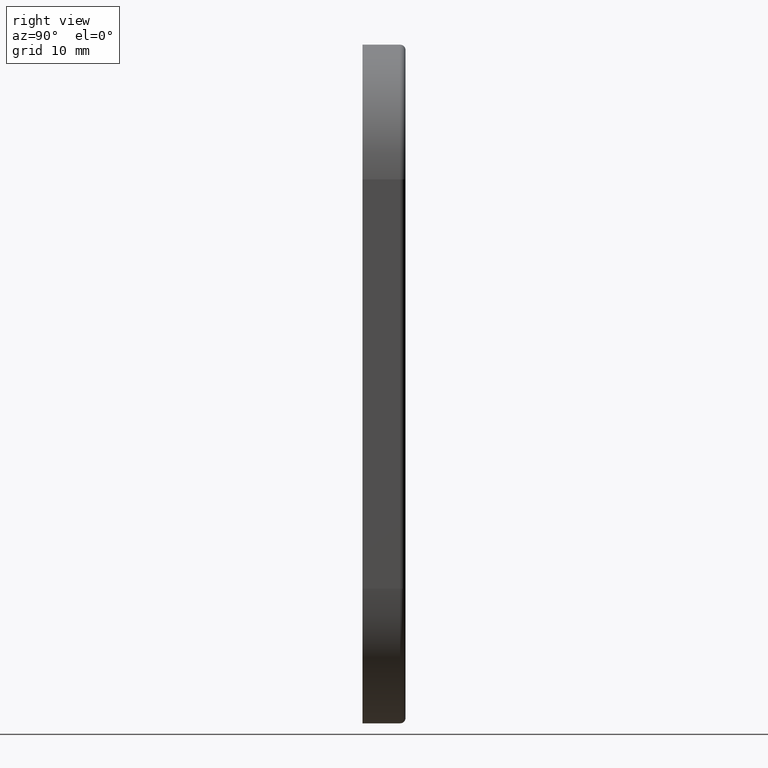
[diagram: clean part render]
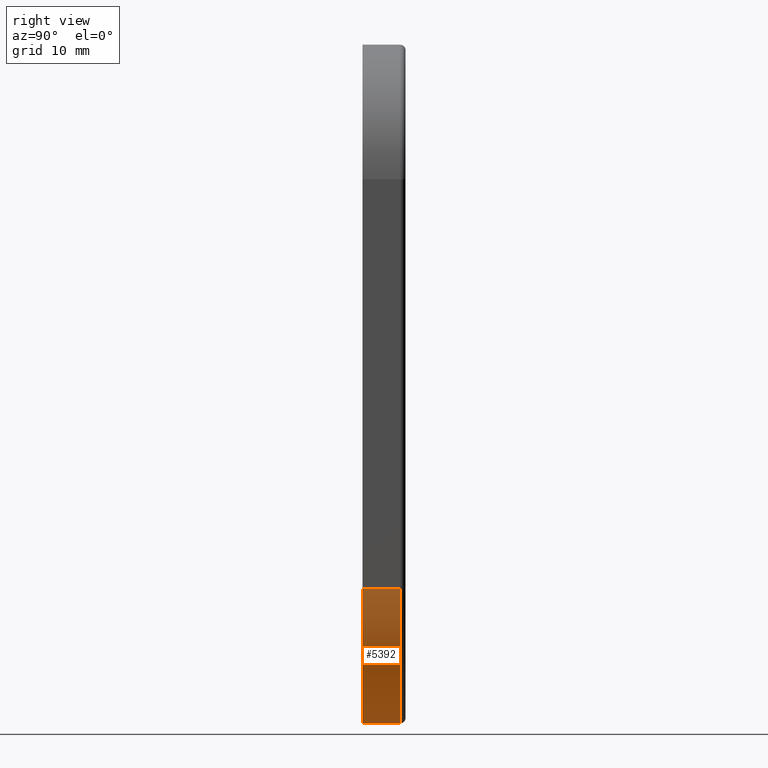
[diagram: same view with one face highlighted and labeled with its STEP entity id]
A machine part, right view. The second image highlights one B-rep face of the part: STEP entity #5392.
In plain terms, the highlighted cylindrical surface (partial cylindrical patch) has radius 12.5 mm, axis along (0, 1, 0).
Its self-contained STEP definition (entity closure, byte-faithful):
#295 = AXIS2_PLACEMENT_3D ( 'NONE', #5250, #1778, #13575 ) ;
#401 = CIRCLE ( 'NONE', #3448, 12.49999999999999645 ) ;
#785 = EDGE_CURVE ( 'NONE', #13454, #14632, #6210, .T. ) ;
#1388 = CARTESIAN_POINT ( 'NONE',  ( 0.000000000000000000, 3.500000000000000000, -19.00000000000000355 ) ) ;
#1435 = DIRECTION ( 'NONE',  ( 0.000000000000000000, 0.000000000000000000, -1.000000000000000000 ) ) ;
#1654 = LINE ( 'NONE', #11294, #2382 ) ;
#1778 = DIRECTION ( 'NONE',  ( 0.000000000000000000, 1.000000000000000000, 0.000000000000000000 ) ) ;
#1871 = FACE_OUTER_BOUND ( 'NONE', #14598, .T. ) ;
#2382 = VECTOR ( 'NONE', #3357, 1000.000000000000000 ) ;
#3357 = DIRECTION ( 'NONE',  ( -0.000000000000000000, 1.000000000000000000, -0.000000000000000000 ) ) ;
#3448 = AXIS2_PLACEMENT_3D ( 'NONE', #1388, #9471, #1435 ) ;
#3506 = ORIENTED_EDGE ( 'NONE', *, *, #5474, .T. ) ;
#3620 = EDGE_CURVE ( 'NONE', #14880, #13454, #7001, .T. ) ;
#3729 = AXIS2_PLACEMENT_3D ( 'NONE', #5101, #14346, #11914 ) ;
#3752 = CARTESIAN_POINT ( 'NONE',  ( 12.50000000000000000, 4.000000000000000000, -19.00000000000000355 ) ) ;
#5101 = CARTESIAN_POINT ( 'NONE',  ( 0.000000000000000000, 0.000000000000000000, -19.00000000000000355 ) ) ;
#5250 = CARTESIAN_POINT ( 'NONE',  ( 0.000000000000000000, 4.000000000000000000, -19.00000000000000355 ) ) ;
#5307 = CARTESIAN_POINT ( 'NONE',  ( 12.50000000000000000, 3.500000000000000000, -19.00000000000000355 ) ) ;
#5392 = ADVANCED_FACE ( 'NONE', ( #1871 ), #11477, .T. ) ;
#5474 = EDGE_CURVE ( 'NONE', #7089, #14632, #401, .T. ) ;
#6210 = LINE ( 'NONE', #3752, #11979 ) ;
#6942 = EDGE_CURVE ( 'NONE', #14880, #7089, #1654, .T. ) ;
#7001 = CIRCLE ( 'NONE', #3729, 12.50000000000000000 ) ;
#7089 = VERTEX_POINT ( 'NONE', #9906 ) ;
#9471 = DIRECTION ( 'NONE',  ( 0.000000000000000000, -1.000000000000000000, 0.000000000000000000 ) ) ;
#9906 = CARTESIAN_POINT ( 'NONE',  ( -0.000000000000000000, 3.500000000000000000, -31.50000000000000000 ) ) ;
#10774 = CARTESIAN_POINT ( 'NONE',  ( 12.50000000000000000, 0.000000000000000000, -19.00000000000000355 ) ) ;
#10847 = ORIENTED_EDGE ( 'NONE', *, *, #3620, .F. ) ;
#11294 = CARTESIAN_POINT ( 'NONE',  ( -0.000000000000000000, 0.000000000000000000, -31.50000000000000000 ) ) ;
#11477 = CYLINDRICAL_SURFACE ( 'NONE', #295, 12.50000000000000000 ) ;
#11914 = DIRECTION ( 'NONE',  ( 0.000000000000000000, 0.000000000000000000, 1.000000000000000000 ) ) ;
#11979 = VECTOR ( 'NONE', #12856, 1000.000000000000000 ) ;
#12088 = ORIENTED_EDGE ( 'NONE', *, *, #785, .F. ) ;
#12856 = DIRECTION ( 'NONE',  ( 0.000000000000000000, 1.000000000000000000, 0.000000000000000000 ) ) ;
#13454 = VERTEX_POINT ( 'NONE', #10774 ) ;
#13575 = DIRECTION ( 'NONE',  ( 0.000000000000000000, 0.000000000000000000, 1.000000000000000000 ) ) ;
#13984 = CARTESIAN_POINT ( 'NONE',  ( 0.000000000000000000, 0.000000000000000000, -31.50000000000000000 ) ) ;
#14346 = DIRECTION ( 'NONE',  ( -0.000000000000000000, -1.000000000000000000, -0.000000000000000000 ) ) ;
#14585 = ORIENTED_EDGE ( 'NONE', *, *, #6942, .T. ) ;
#14598 = EDGE_LOOP ( 'NONE', ( #14585, #3506, #12088, #10847 ) ) ;
#14632 = VERTEX_POINT ( 'NONE', #5307 ) ;
#14880 = VERTEX_POINT ( 'NONE', #13984 ) ;